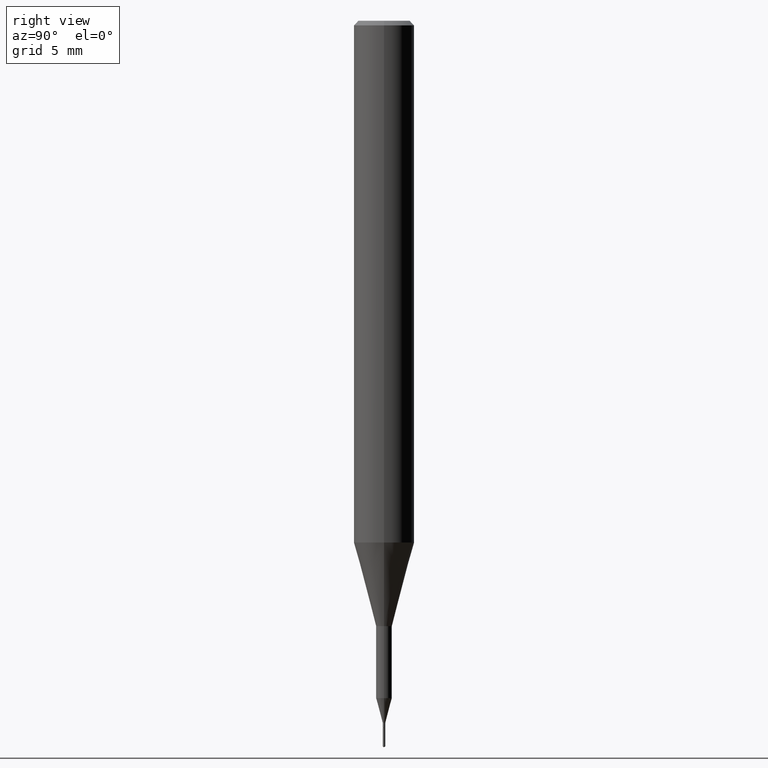
[diagram: clean part render]
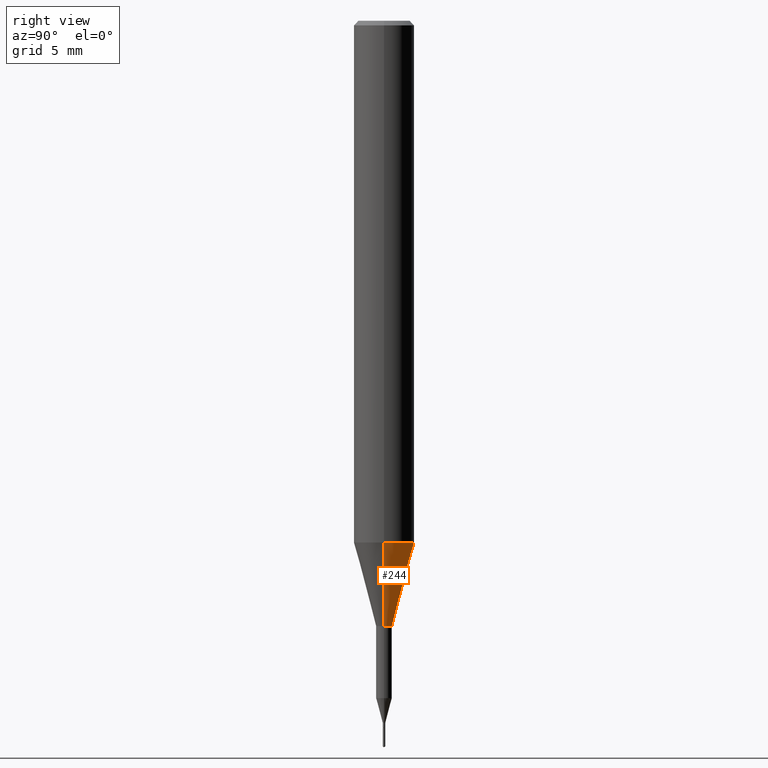
[diagram: same view with one face highlighted and labeled with its STEP entity id]
A machine part, right view. The second image highlights one B-rep face of the part: STEP entity #244.
In plain terms, the highlighted conical surface has half-angle 15 deg.
Its self-contained STEP definition (entity closure, byte-faithful):
#20 = DIRECTION ( 'NONE',  ( 0.2588190451025214611, 1.565188264969621573E-15, 0.9659258262890682012 ) ) ;
#28 = EDGE_CURVE ( 'NONE', #324, #279, #70, .T. ) ;
#29 = AXIS2_PLACEMENT_3D ( 'NONE', #349, #117, #342 ) ;
#43 = ORIENTED_EDGE ( 'NONE', *, *, #28, .F. ) ;
#70 = LINE ( 'NONE', #357, #507 ) ;
#107 = EDGE_CURVE ( 'NONE', #324, #546, #200, .T. ) ;
#116 = DIRECTION ( 'NONE',  ( -2.445468806185136597E-29, 3.491481338843145583E-15, 1.000000000000000000 ) ) ;
#117 = DIRECTION ( 'NONE',  ( -2.445468806185136597E-29, 3.491481338843145583E-15, 1.000000000000000000 ) ) ;
#125 = DIRECTION ( 'NONE',  ( 1.000000000000000000, -6.982962677686264344E-15, 0.000000000000000000 ) ) ;
#136 = EDGE_LOOP ( 'NONE', ( #554, #468, #325, #43 ) ) ;
#162 = CARTESIAN_POINT ( 'NONE',  ( 0.06250000000000012490, -4.198131499960668153E-15, -1.077392650149939346 ) ) ;
#165 = CIRCLE ( 'NONE', #487, 0.06250000000000012490 ) ;
#174 = VECTOR ( 'NONE', #524, 39.37007874015747433 ) ;
#200 = CIRCLE ( 'NONE', #29, 0.01624999999999999709 ) ;
#241 = EDGE_CURVE ( 'NONE', #279, #294, #165, .T. ) ;
#244 = ADVANCED_FACE ( 'NONE', ( #295 ), #419, .T. ) ;
#279 = VERTEX_POINT ( 'NONE', #162 ) ;
#294 = VERTEX_POINT ( 'NONE', #480 ) ;
#295 = FACE_OUTER_BOUND ( 'NONE', #136, .T. ) ;
#301 = EDGE_CURVE ( 'NONE', #546, #294, #441, .T. ) ;
#324 = VERTEX_POINT ( 'NONE', #572 ) ;
#325 = ORIENTED_EDGE ( 'NONE', *, *, #241, .F. ) ;
#337 = DIRECTION ( 'NONE',  ( -2.445468806185136597E-29, 3.491481338843145583E-15, 1.000000000000000000 ) ) ;
#342 = DIRECTION ( 'NONE',  ( 1.000000000000000000, -6.982962677686288799E-15, 0.000000000000000000 ) ) ;
#349 = CARTESIAN_POINT ( 'NONE',  ( 3.056836007731421306E-29, -4.364351673553932471E-15, -1.250000000000000000 ) ) ;
#357 = CARTESIAN_POINT ( 'NONE',  ( 0.06250000000000012490, -4.198131499960668153E-15, -1.077392650149939346 ) ) ;
#372 = CARTESIAN_POINT ( 'NONE',  ( 2.634730117954813298E-29, -3.761696332605275695E-15, -1.077392650149939346 ) ) ;
#405 = AXIS2_PLACEMENT_3D ( 'NONE', #428, #116, #125 ) ;
#419 = CONICAL_SURFACE ( 'NONE', #405, 0.06250000000000012490, 0.2617993877991501295 ) ;
#428 = CARTESIAN_POINT ( 'NONE',  ( 2.634730117954813298E-29, -3.761696332605275695E-15, -1.077392650149939346 ) ) ;
#441 = LINE ( 'NONE', #448, #174 ) ;
#448 = CARTESIAN_POINT ( 'NONE',  ( -0.06250000000000012490, -3.317607122755211895E-15, -1.077392650149939346 ) ) ;
#468 = ORIENTED_EDGE ( 'NONE', *, *, #301, .T. ) ;
#469 = CARTESIAN_POINT ( 'NONE',  ( -0.01624999999999999709, -4.508452710844322194E-15, -1.250000000000000000 ) ) ;
#480 = CARTESIAN_POINT ( 'NONE',  ( -0.06250000000000012490, -3.317607122755211895E-15, -1.077392650149939346 ) ) ;
#487 = AXIS2_PLACEMENT_3D ( 'NONE', #372, #337, #511 ) ;
#507 = VECTOR ( 'NONE', #20, 39.37007874015747433 ) ;
#511 = DIRECTION ( 'NONE',  ( 1.000000000000000000, -6.982962677686264344E-15, 0.000000000000000000 ) ) ;
#524 = DIRECTION ( 'NONE',  ( -0.2588190451025214611, 5.211531920934551042E-15, 0.9659258262890682012 ) ) ;
#546 = VERTEX_POINT ( 'NONE', #469 ) ;
#554 = ORIENTED_EDGE ( 'NONE', *, *, #107, .T. ) ;
#572 = CARTESIAN_POINT ( 'NONE',  ( 0.01624999999999999709, -4.477824817066334148E-15, -1.250000000000000000 ) ) ;